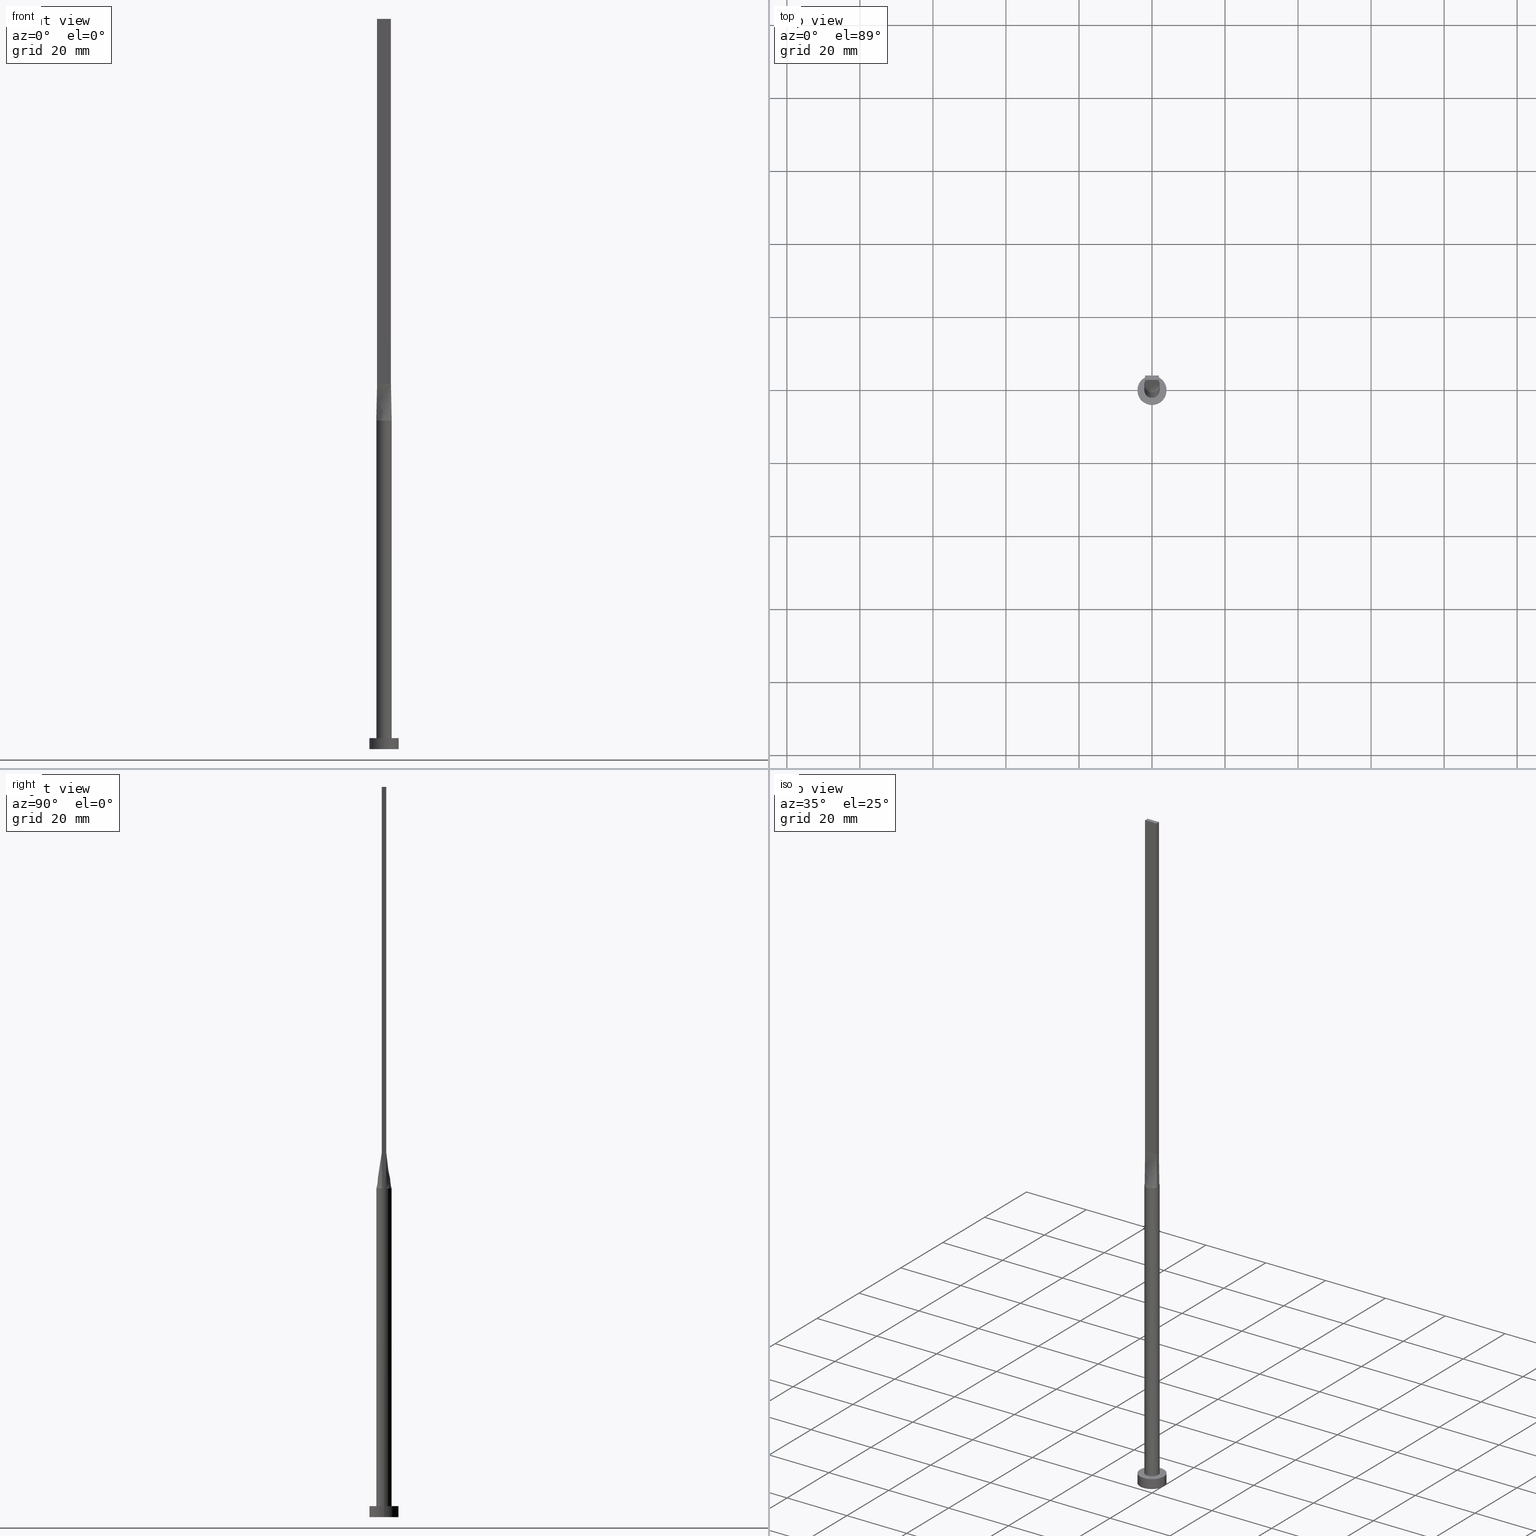
[diagram: canonical four-view strip — front | top / right | iso, engineering-drawing reading convention]
A machine part, canonical four-view strip (front | top / right | iso — engineering-drawing reading convention). The complete STEP part file that produces these views, byte-faithful:
ISO-10303-21;
HEADER;
FILE_DESCRIPTION (( 'STEP AP203' ),
    '1' );
FILE_NAME ('c503.STEP',
    '2023-02-13T13:19:07',
    ( '' ),
    ( '' ),
    'SwSTEP 2.0',
    'SolidWorks 2019',
    '' );
FILE_SCHEMA (( 'CONFIG_CONTROL_DESIGN' ));
ENDSEC;

DATA;
#1 = EDGE_CURVE ( 'NONE', #502, #539, #475, .T. ) ;
#2 = ORIENTED_EDGE ( 'NONE', *, *, #10, .T. ) ;
#3 = CARTESIAN_POINT ( 'NONE',  ( -1.899999999999999467, 0.1999999999999995115, 99.99999999999997158 ) ) ;
#4 = CARTESIAN_POINT ( 'NONE',  ( -0.5124799074986362557, 2.051574327850739454, 90.00000000000002842 ) ) ;
#5 = ORIENTED_EDGE ( 'NONE', *, *, #442, .T. ) ;
#6 = COORDINATED_UNIVERSAL_TIME_OFFSET ( 1, 0, .AHEAD. ) ;
#7 = DIRECTION ( 'NONE',  ( 1.000000000000000000, 0.000000000000000000, 0.000000000000000000 ) ) ;
#8 = EDGE_CURVE ( 'NONE', #372, #539, #489, .T. ) ;
#9 = ORIENTED_EDGE ( 'NONE', *, *, #199, .F. ) ;
#10 = EDGE_CURVE ( 'NONE', #37, #357, #68, .T. ) ;
#11 = EDGE_CURVE ( 'NONE', #233, #367, #536, .T. ) ;
#12 = CARTESIAN_POINT ( 'NONE',  ( -1.899999999999999689, 0.6000000000000001998, 99.99999999999998579 ) ) ;
#13 = DIRECTION ( 'NONE',  ( -0.000000000000000000, -0.000000000000000000, -1.000000000000000000 ) ) ;
#14 = CARTESIAN_POINT ( 'NONE',  ( 0.000000000000000000, 0.000000000000000000, 3.000000000000000000 ) ) ;
#15 = ORIENTED_EDGE ( 'NONE', *, *, #545, .F. ) ;
#16 = DIRECTION ( 'NONE',  ( -0.01025176717979709405, -0.003237400162041182208, 0.9999422085850171449 ) ) ;
#17 = CARTESIAN_POINT ( 'NONE',  ( -2.002622288503867587, 0.6324075186587619912, 90.00000000000000000 ) ) ;
#18 = ADVANCED_FACE ( 'NONE', ( #215 ), #213, .T. ) ;
#19 = CARTESIAN_POINT ( 'NONE',  ( -1.108333333333332504, -0.5999999999999996447, 99.99999999999994316 ) ) ;
#20 = AXIS2_PLACEMENT_3D ( 'NONE', #283, #324, #335 ) ;
#21 = CARTESIAN_POINT ( 'NONE',  ( -1.951261798390848901, -0.6161879363339519688, 95.00000000000000000 ) ) ;
#22 = ORIENTED_EDGE ( 'NONE', *, *, #224, .F. ) ;
#23 = VECTOR ( 'NONE', #16, 1000.000000000000114 ) ;
#24 = CARTESIAN_POINT ( 'NONE',  ( -1.583333333333333259, 0.6000000000000000888, 99.99999999999998579 ) ) ;
#25 = DIRECTION ( 'NONE',  ( -1.807003620809174139E-16, 1.000000000000000000, -0.000000000000000000 ) ) ;
#26 = CARTESIAN_POINT ( 'NONE',  ( -1.899999999999999689, 0.6000000000000001998, 200.0000000000000000 ) ) ;
#27 = CARTESIAN_POINT ( 'NONE',  ( -0.9765948449220485106, -1.875594675604967509, 90.00000000000002842 ) ) ;
#28 = PERSON_AND_ORGANIZATION_ROLE ( 'creator' ) ;
#29 = EDGE_LOOP ( 'NONE', ( #173, #407, #237, #84 ) ) ;
#30 = PERSON_AND_ORGANIZATION ( #328, #62 ) ;
#31 = FACE_OUTER_BOUND ( 'NONE', #176, .T. ) ;
#32 = CARTESIAN_POINT ( 'NONE',  ( 0.5124799074986362557, 2.051574327850739454, 90.00000000000004263 ) ) ;
#33 = CARTESIAN_POINT ( 'NONE',  ( -2.002601997802567535, -0.6324010168594718095, 90.00000000000000000 ) ) ;
#34 = FACE_OUTER_BOUND ( 'NONE', #191, .T. ) ;
#35 = AXIS2_PLACEMENT_3D ( 'NONE', #14, #193, #154 ) ;
#36 = APPROVAL_DATE_TIME ( #521, #418 ) ;
#37 = VERTEX_POINT ( 'NONE', #33 ) ;
#38 = CARTESIAN_POINT ( 'NONE',  ( -1.583333333333332593, -0.5999999999999995337, 99.99999999999995737 ) ) ;
#39 = ORIENTED_EDGE ( 'NONE', *, *, #90, .T. ) ;
#40 = ADVANCED_FACE ( 'NONE', ( #114 ), #161, .T. ) ;
#41 = VERTEX_POINT ( 'NONE', #297 ) ;
#42 = CARTESIAN_POINT ( 'NONE',  ( -1.899999999999999689, 0.6000000000000001998, 99.99999999999998579 ) ) ;
#43 = DIRECTION ( 'NONE',  ( 0.000000000000000000, 0.000000000000000000, 1.000000000000000000 ) ) ;
#44 = CARTESIAN_POINT ( 'NONE',  ( -2.065999667310664645, -0.4313683159928413113, 90.00000000000000000 ) ) ;
#45 = AXIS2_PLACEMENT_3D ( 'NONE', #351, #361, #124 ) ;
#46 = CARTESIAN_POINT ( 'NONE',  ( 1.899999999999999023, -0.5999999999999997558, 99.99999999999998579 ) ) ;
#47 = ORIENTED_EDGE ( 'NONE', *, *, #141, .F. ) ;
#48 = CARTESIAN_POINT ( 'NONE',  ( -1.951261798390848901, 0.6161879363339521909, 95.00000000000000000 ) ) ;
#49 = CARTESIAN_POINT ( 'NONE',  ( -1.899999999999999689, 0.6000000000000001998, 200.0000000000000000 ) ) ;
#50 = VECTOR ( 'NONE', #262, 1000.000000000000000 ) ;
#51 = CARTESIAN_POINT ( 'NONE',  ( -1.667357759214464386, -1.291791096182926424, 89.99999999999997158 ) ) ;
#52 = CARTESIAN_POINT ( 'NONE',  ( -2.100000000000000089, -1.284268198382905442E-16, 90.00000000000000000 ) ) ;
#53 = AXIS2_PLACEMENT_3D ( 'NONE', #555, #151, #526 ) ;
#54 = FACE_OUTER_BOUND ( 'NONE', #220, .T. ) ;
#55 = COORDINATED_UNIVERSAL_TIME_OFFSET ( 1, 0, .AHEAD. ) ;
#56 = ORIENTED_EDGE ( 'NONE', *, *, #525, .F. ) ;
#57 = FACE_OUTER_BOUND ( 'NONE', #465, .T. ) ;
#58 = CARTESIAN_POINT ( 'NONE',  ( 2.100000000000000089, 0.2158003972066308285, 89.99999999999997158 ) ) ;
#59 = ORIENTED_EDGE ( 'NONE', *, *, #494, .T. ) ;
#60 = LINE ( 'NONE', #235, #276 ) ;
#61 = CARTESIAN_POINT ( 'NONE',  ( 0.7916666666666670737, 0.6000000000000000888, 99.99999999999997158 ) ) ;
#62 = ORGANIZATION ( 'NEUR�EN�', 'NEUR�EN�', '' ) ;
#63 = EDGE_CURVE ( 'NONE', #367, #495, #397, .T. ) ;
#64 = FACE_OUTER_BOUND ( 'NONE', #29, .T. ) ;
#65 = VERTEX_POINT ( 'NONE', #478 ) ;
#66 = CARTESIAN_POINT ( 'NONE',  ( 0.9765948449220478444, -1.875594675604967954, 90.00000000000005684 ) ) ;
#67 = EDGE_LOOP ( 'NONE', ( #47, #523 ) ) ;
#68 = CIRCLE ( 'NONE', #412, 2.100000000000000089 ) ;
#69 = CARTESIAN_POINT ( 'NONE',  ( -1.667357759214464830, 1.291791096182927534, 90.00000000000001421 ) ) ;
#70 = CARTESIAN_POINT ( 'NONE',  ( -2.100000000000000089, 0.000000000000000000, 3.000000000000000000 ) ) ;
#71 = EDGE_CURVE ( 'NONE', #194, #502, #305, .T. ) ;
#72 = VECTOR ( 'NONE', #392, 1000.000000000000000 ) ;
#73 = DIRECTION ( 'NONE',  ( 1.000000000000000000, 0.000000000000000000, 0.000000000000000000 ) ) ;
#74 = ORIENTED_EDGE ( 'NONE', *, *, #579, .T. ) ;
#75 = B_SPLINE_SURFACE_WITH_KNOTS ( 'NONE', 3, 1, ( 
 ( #381, #507 ),
 ( #416, #278 ),
 ( #267, #282 ),
 ( #58, #398 ),
 ( #81, #256 ),
 ( #179, #359 ) ),
 .UNSPECIFIED., .F., .F., .F.,
 ( 4, 2, 4 ),
 ( 2, 2 ),
 ( 0.000000000000000000, 0.5000000000000000000, 1.000000000000000000 ),
 ( 0.000000000000000000, 1.000000000000000000 ),
 .UNSPECIFIED. ) ;
#76 = CALENDAR_DATE ( 2023, 13, 2 ) ;
#77 = PLANE ( 'NONE',  #143 ) ;
#78 = CARTESIAN_POINT ( 'NONE',  ( 1.899999999999999689, 0.6000000000000001998, 200.0000000000000000 ) ) ;
#79 = DATE_TIME_ROLE ( 'classification_date' ) ;
#80 = VERTEX_POINT ( 'NONE', #46 ) ;
#81 = CARTESIAN_POINT ( 'NONE',  ( 2.065999667310664645, 0.4313683159928415889, 90.00000000000000000 ) ) ;
#82 = PLANE ( 'NONE',  #384 ) ;
#83 = CARTESIAN_POINT ( 'NONE',  ( 1.529462611013499229, -1.456669187245239971, 90.00000000000001421 ) ) ;
#84 = ORIENTED_EDGE ( 'NONE', *, *, #452, .F. ) ;
#85 = CARTESIAN_POINT ( 'NONE',  ( -1.899999999999999911, -0.5999999999999995337, 200.0000000000000000 ) ) ;
#86 = DIRECTION ( 'NONE',  ( -0.000000000000000000, -0.000000000000000000, -1.000000000000000000 ) ) ;
#87 = DIRECTION ( 'NONE',  ( 0.000000000000000000, 0.000000000000000000, 1.000000000000000000 ) ) ;
#88 = CARTESIAN_POINT ( 'NONE',  ( 0.1583333333333335202, 0.6000000000000000888, 99.99999999999997158 ) ) ;
#89 = ORIENTED_EDGE ( 'NONE', *, *, #11, .F. ) ;
#90 = EDGE_CURVE ( 'NONE', #464, #80, #528, .T. ) ;
#91 = ORIENTED_EDGE ( 'NONE', *, *, #127, .F. ) ;
#92 = ADVANCED_FACE ( 'NONE', ( #370 ), #82, .T. ) ;
#93 = CARTESIAN_POINT ( 'NONE',  ( -1.667357759214464830, 1.291791096182927534, 90.00000000000001421 ) ) ;
#94 = CARTESIAN_POINT ( 'NONE',  ( 0.000000000000000000, 0.000000000000000000, 3.000000000000000000 ) ) ;
#95 = FACE_OUTER_BOUND ( 'NONE', #185, .T. ) ;
#96 = ADVANCED_BREP_SHAPE_REPRESENTATION ( 'c503', ( #457, #45 ), #477 ) ;
#97 = CARTESIAN_POINT ( 'NONE',  ( 0.000000000000000000, 0.000000000000000000, 3.000000000000000000 ) ) ;
#98 = CARTESIAN_POINT ( 'NONE',  ( 1.952271707612932339, -0.7915068550356634258, 90.00000000000001421 ) ) ;
#99 = DIRECTION ( 'NONE',  ( -1.000000000000000000, 0.000000000000000000, 0.000000000000000000 ) ) ;
#100 = AXIS2_PLACEMENT_3D ( 'NONE', #569, #430, #391 ) ;
#101 = CARTESIAN_POINT ( 'NONE',  ( 0.000000000000000000, 0.000000000000000000, 3.000000000000000000 ) ) ;
#102 = VECTOR ( 'NONE', #255, 1000.000000000000000 ) ;
#103 = CARTESIAN_POINT ( 'NONE',  ( 2.002598039528881380, 0.6323997261616642884, 90.00000000000000000 ) ) ;
#104 = APPLICATION_CONTEXT ( 'configuration controlled 3d designs of mechanical parts and assemblies' ) ;
#105 = CC_DESIGN_PERSON_AND_ORGANIZATION_ASSIGNMENT ( #225, #535, ( #250 ) ) ;
#106 = FACE_OUTER_BOUND ( 'NONE', #67, .T. ) ;
#107 = CARTESIAN_POINT ( 'NONE',  ( -4.000000000000000000, 0.000000000000000000, 3.000000000000000000 ) ) ;
#108 = AXIS2_PLACEMENT_3D ( 'NONE', #492, #87, #543 ) ;
#109 = CARTESIAN_POINT ( 'NONE',  ( -1.899999999999999911, -0.5999999999999995337, 200.0000000000000000 ) ) ;
#110 = PRODUCT_DEFINITION_SHAPE ( 'NONE', 'NONE',  #250 ) ;
#111 = CARTESIAN_POINT ( 'NONE',  ( 0.2565105576742072735, -2.100000000000000533, 90.00000000000002842 ) ) ;
#112 = CARTESIAN_POINT ( 'NONE',  ( 0.000000000000000000, 0.000000000000000000, 3.000000000000000000 ) ) ;
#113 = AXIS2_PLACEMENT_3D ( 'NONE', #293, #347, #117 ) ;
#114 = FACE_OUTER_BOUND ( 'NONE', #126, .T. ) ;
#115 = DIRECTION ( 'NONE',  ( -1.807003620809174632E-16, -1.000000000000000000, 0.000000000000000000 ) ) ;
#116 = VERTEX_POINT ( 'NONE', #443 ) ;
#117 = DIRECTION ( 'NONE',  ( -1.000000000000000000, 0.000000000000000000, 0.000000000000000000 ) ) ;
#118 = ORIENTED_EDGE ( 'NONE', *, *, #199, .T. ) ;
#119 = DIRECTION ( 'NONE',  ( 1.000000000000000000, -1.776356839400250465E-15, 0.000000000000000000 ) ) ;
#120 = APPROVAL_ROLE ( '' ) ;
#121 = VECTOR ( 'NONE', #453, 1000.000000000000000 ) ;
#122 = ORIENTED_EDGE ( 'NONE', *, *, #494, .F. ) ;
#123 = CARTESIAN_POINT ( 'NONE',  ( 0.000000000000000000, 0.000000000000000000, 90.00000000000000000 ) ) ;
#124 = DIRECTION ( 'NONE',  ( 1.000000000000000000, 0.000000000000000000, 0.000000000000000000 ) ) ;
#125 = VECTOR ( 'NONE', #115, 1000.000000000000000 ) ;
#126 = EDGE_LOOP ( 'NONE', ( #265, #157, #189, #451, #580, #556 ) ) ;
#127 = EDGE_CURVE ( 'NONE', #306, #435, #449, .T. ) ;
#128 = CALENDAR_DATE ( 2023, 13, 2 ) ;
#129 = DIRECTION ( 'NONE',  ( 1.000000000000000000, -5.706327223607920020E-17, 0.000000000000000000 ) ) ;
#130 = CARTESIAN_POINT ( 'NONE',  ( -2.002523596781697890, -0.6323758726679042930, 90.00000000000000000 ) ) ;
#131 = CARTESIAN_POINT ( 'NONE',  ( -0.1583333333333331316, 0.6000000000000000888, 99.99999999999997158 ) ) ;
#132 = CARTESIAN_POINT ( 'NONE',  ( 1.529462611013499451, 1.456669187245239527, 90.00000000000002842 ) ) ;
#133 = CARTESIAN_POINT ( 'NONE',  ( -0.6333333333333327486, 0.6000000000000000888, 99.99999999999997158 ) ) ;
#134 = VECTOR ( 'NONE', #202, 1000.000000000000114 ) ;
#135 = CC_DESIGN_SECURITY_CLASSIFICATION ( #448, ( #264 ) ) ;
#136 = CARTESIAN_POINT ( 'NONE',  ( -1.952271707612931895, -0.7915068550356626487, 90.00000000000001421 ) ) ;
#137 = CARTESIAN_POINT ( 'NONE',  ( -1.899999999999999911, -0.5999999999999995337, 99.99999999999998579 ) ) ;
#138 = ORIENTED_EDGE ( 'NONE', *, *, #140, .F. ) ;
#139 = APPROVAL_DATE_TIME ( #368, #511 ) ;
#140 = EDGE_CURVE ( 'NONE', #367, #80, #259, .T. ) ;
#141 = EDGE_CURVE ( 'NONE', #41, #435, #198, .T. ) ;
#142 = PERSON_AND_ORGANIZATION ( #328, #62 ) ;
#143 = AXIS2_PLACEMENT_3D ( 'NONE', #573, #223, #178 ) ;
#144 = CARTESIAN_POINT ( 'NONE',  ( 0.000000000000000000, 0.000000000000000000, 90.00000000000000000 ) ) ;
#145 = DIRECTION ( 'NONE',  ( 0.000000000000000000, 0.000000000000000000, 1.000000000000000000 ) ) ;
#146 = CC_DESIGN_PERSON_AND_ORGANIZATION_ASSIGNMENT ( #300, #480, ( #448 ) ) ;
#147 = CARTESIAN_POINT ( 'NONE',  ( 1.741666666666665808, -0.5999999999999997558, 99.99999999999997158 ) ) ;
#148 = CARTESIAN_POINT ( 'NONE',  ( -1.878511276496549032, 0.9591670956957809580, 90.00000000000004263 ) ) ;
#149 = CARTESIAN_POINT ( 'NONE',  ( 1.899999999999999689, 0.6000000000000001998, 200.0000000000000000 ) ) ;
#150 = DIRECTION ( 'NONE',  ( 0.000000000000000000, 0.000000000000000000, 1.000000000000000000 ) ) ;
#151 = DIRECTION ( 'NONE',  ( 0.000000000000000000, 0.000000000000000000, 1.000000000000000000 ) ) ;
#152 = ORIENTED_EDGE ( 'NONE', *, *, #458, .F. ) ;
#153 = APPROVAL_PERSON_ORGANIZATION ( #280, #511, #454 ) ;
#154 = DIRECTION ( 'NONE',  ( 1.000000000000000000, 0.000000000000000000, 0.000000000000000000 ) ) ;
#155 = CARTESIAN_POINT ( 'NONE',  ( -2.002523596781697890, 0.6323758726679044040, 90.00000000000000000 ) ) ;
#156 = APPLICATION_PROTOCOL_DEFINITION ( 'international standard', 'config_control_design', 1994, #197 ) ;
#157 = ORIENTED_EDGE ( 'NONE', *, *, #71, .T. ) ;
#158 = SECURITY_CLASSIFICATION_LEVEL ( 'unclassified' ) ;
#159 = CALENDAR_DATE ( 2023, 13, 2 ) ;
#160 = CARTESIAN_POINT ( 'NONE',  ( -1.529462611013499451, 1.456669187245239527, 90.00000000000002842 ) ) ;
#161 = CYLINDRICAL_SURFACE ( 'NONE', #113, 2.100000000000000089 ) ;
#162 =( NAMED_UNIT ( * ) PLANE_ANGLE_UNIT ( ) SI_UNIT ( $, .RADIAN. ) );
#163 = ORIENTED_EDGE ( 'NONE', *, *, #71, .F. ) ;
#164 = CARTESIAN_POINT ( 'NONE',  ( 1.266666666666667052, 0.6000000000000000888, 99.99999999999998579 ) ) ;
#165 = DIRECTION ( 'NONE',  ( 1.000000000000000000, 0.000000000000000000, 0.000000000000000000 ) ) ;
#166 = CARTESIAN_POINT ( 'NONE',  ( -1.899999999999999689, -0.4000000000000000777, 99.99999999999997158 ) ) ;
#167 = VERTEX_POINT ( 'NONE', #49 ) ;
#168 = VERTEX_POINT ( 'NONE', #42 ) ;
#169 = LINE ( 'NONE', #85, #520 ) ;
#170 = CARTESIAN_POINT ( 'NONE',  ( 1.108333333333333171, -0.5999999999999996447, 99.99999999999997158 ) ) ;
#171 = VECTOR ( 'NONE', #25, 1000.000000000000000 ) ;
#172 = LINE ( 'NONE', #356, #522 ) ;
#173 = ORIENTED_EDGE ( 'NONE', *, *, #442, .F. ) ;
#174 = DIRECTION ( 'NONE',  ( 0.000000000000000000, 0.000000000000000000, 1.000000000000000000 ) ) ;
#175 = CARTESIAN_POINT ( 'NONE',  ( -0.2565105576742073845, 2.100000000000000533, 90.00000000000001421 ) ) ;
#176 = EDGE_LOOP ( 'NONE', ( #118, #496, #56, #380 ) ) ;
#177 = ORIENTED_EDGE ( 'NONE', *, *, #217, .T. ) ;
#178 = DIRECTION ( 'NONE',  ( -1.000000000000000000, 5.706327223607920020E-17, 0.000000000000000000 ) ) ;
#179 = CARTESIAN_POINT ( 'NONE',  ( 2.002523596781697890, 0.6323758726679047371, 90.00000000000000000 ) ) ;
#180 = ADVANCED_FACE ( 'NONE', ( #95 ), #332, .T. ) ;
#181 = DIRECTION ( 'NONE',  ( -0.000000000000000000, -0.000000000000000000, -1.000000000000000000 ) ) ;
#182 = CARTESIAN_POINT ( 'NONE',  ( 1.899999999999999689, 0.6000000000000001998, 99.99999999999998579 ) ) ;
#183 = CARTESIAN_POINT ( 'NONE',  ( -2.100000000000000089, -0.2158003972066306064, 89.99999999999997158 ) ) ;
#184 = CIRCLE ( 'NONE', #326, 2.100000000000000089 ) ;
#185 = EDGE_LOOP ( 'NONE', ( #499, #342, #208, #122, #570 ) ) ;
#186 = B_SPLINE_CURVE_WITH_KNOTS ( 'NONE', 3,
 ( #103, #378, #331, #552, #467, #240, #422, #32, #290, #248, #203, #246, #211, #160, #93, #148, #561, #471 ),
 .UNSPECIFIED., .F., .F.,
 ( 4, 2, 2, 2, 2, 2, 2, 2, 4 ),
 ( 0.000000000000000000, 0.1249999999999999167, 0.2499999999999998890, 0.3749999999999998335, 0.4999999999999998890, 0.6249999999999998890, 0.7499999999999998890, 0.8750000000000000000, 1.000000000000000000 ),
 .UNSPECIFIED. ) ;
#187 = AXIS2_PLACEMENT_3D ( 'NONE', #26, #349, #249 ) ;
#188 = CARTESIAN_POINT ( 'NONE',  ( -0.7916666666666660745, 0.6000000000000000888, 99.99999999999998579 ) ) ;
#189 = ORIENTED_EDGE ( 'NONE', *, *, #1, .T. ) ;
#190 = VECTOR ( 'NONE', #434, 1000.000000000000000 ) ;
#191 = EDGE_LOOP ( 'NONE', ( #432, #5 ) ) ;
#192 = CARTESIAN_POINT ( 'NONE',  ( 1.899999999999999689, 0.6000000000000001998, 99.99999999999998579 ) ) ;
#193 = DIRECTION ( 'NONE',  ( 0.000000000000000000, 0.000000000000000000, 1.000000000000000000 ) ) ;
#194 = VERTEX_POINT ( 'NONE', #532 ) ;
#195 = CARTESIAN_POINT ( 'NONE',  ( -0.2565105576742081062, -2.100000000000000089, 89.99999999999998579 ) ) ;
#196 = ORIENTED_EDGE ( 'NONE', *, *, #525, .T. ) ;
#197 = APPLICATION_CONTEXT ( 'configuration controlled 3d designs of mechanical parts and assemblies' ) ;
#198 = CIRCLE ( 'NONE', #108, 4.000000000000000000 ) ;
#199 = EDGE_CURVE ( 'NONE', #299, #168, #360, .T. ) ;
#200 = PRODUCT ( 'c503', 'c503', '', ( #444 ) ) ;
#201 = LINE ( 'NONE', #560, #72 ) ;
#202 = DIRECTION ( 'NONE',  ( -0.01025176717979707323, -0.003237400162041204326, -0.9999422085850171449 ) ) ;
#203 = CARTESIAN_POINT ( 'NONE',  ( -0.5124799074986362557, 2.051574327850739454, 90.00000000000002842 ) ) ;
#204 = CARTESIAN_POINT ( 'NONE',  ( -1.878511276496549032, 0.9591670956957809580, 90.00000000000004263 ) ) ;
#205 = COORDINATED_UNIVERSAL_TIME_OFFSET ( 1, 0, .AHEAD. ) ;
#206 = ORIENTED_EDGE ( 'NONE', *, *, #8, .T. ) ;
#207 = ADVANCED_FACE ( 'NONE', ( #445 ), #406, .F. ) ;
#208 = ORIENTED_EDGE ( 'NONE', *, *, #314, .F. ) ;
#209 = CARTESIAN_POINT ( 'NONE',  ( 0.3166666666666670404, 0.6000000000000000888, 99.99999999999997158 ) ) ;
#210 = EDGE_LOOP ( 'NONE', ( #39, #138, #89, #216 ) ) ;
#211 = CARTESIAN_POINT ( 'NONE',  ( -1.184262492297963876, 1.748903470433446294, 90.00000000000002842 ) ) ;
#212 = CARTESIAN_POINT ( 'NONE',  ( -1.899999999999999689, 0.6000000000000001998, 200.0000000000000000 ) ) ;
#213 = B_SPLINE_SURFACE_WITH_KNOTS ( 'NONE', 3, 1, ( 
 ( #226, #182 ),
 ( #310, #302 ),
 ( #493, #373 ),
 ( #484, #164 ),
 ( #132, #409 ),
 ( #315, #61 ),
 ( #273, #550 ),
 ( #286, #209 ),
 ( #355, #88 ),
 ( #175, #131 ),
 ( #4, #450 ),
 ( #410, #133 ),
 ( #501, #188 ),
 ( #393, #473 ),
 ( #69, #254 ),
 ( #204, #24 ),
 ( #557, #518 ),
 ( #155, #343 ) ),
 .UNSPECIFIED., .F., .F., .F.,
 ( 4, 2, 2, 2, 2, 2, 2, 2, 4 ),
 ( 2, 2 ),
 ( 0.000000000000000000, 0.1249999999999999167, 0.2499999999999998890, 0.3749999999999998335, 0.4999999999999998890, 0.6249999999999998890, 0.7499999999999998890, 0.8750000000000000000, 1.000000000000000000 ),
 ( 0.000000000000000000, 1.000000000000000000 ),
 .UNSPECIFIED. ) ;
#214 = LINE ( 'NONE', #48, #468 ) ;
#215 = FACE_OUTER_BOUND ( 'NONE', #529, .T. ) ;
#216 = ORIENTED_EDGE ( 'NONE', *, *, #363, .T. ) ;
#217 = EDGE_CURVE ( 'NONE', #65, #455, #186, .T. ) ;
#218 = FACE_OUTER_BOUND ( 'NONE', #441, .T. ) ;
#219 = CARTESIAN_POINT ( 'NONE',  ( -1.899999999999999689, 0.6000000000000001998, 99.99999999999998579 ) ) ;
#220 = EDGE_LOOP ( 'NONE', ( #163, #152, #400, #530, #206, #517 ) ) ;
#221 = DIRECTION ( 'NONE',  ( 1.000000000000000000, 0.000000000000000000, -0.000000000000000000 ) ) ;
#222 = APPROVAL_PERSON_ORGANIZATION ( #30, #344, #120 ) ;
#223 = DIRECTION ( 'NONE',  ( 5.706327223607920020E-17, 1.000000000000000000, -0.000000000000000000 ) ) ;
#224 = EDGE_CURVE ( 'NONE', #539, #502, #358, .T. ) ;
#225 = PERSON_AND_ORGANIZATION ( #328, #62 ) ;
#226 = CARTESIAN_POINT ( 'NONE',  ( 2.002523596781697890, 0.6323758726679044040, 90.00000000000000000 ) ) ;
#227 = CARTESIAN_POINT ( 'NONE',  ( -1.878511276496548144, -0.9591670956957798477, 90.00000000000000000 ) ) ;
#228 = CARTESIAN_POINT ( 'NONE',  ( -1.899999999999999911, -0.5999999999999995337, 99.99999999999998579 ) ) ;
#229 = EDGE_LOOP ( 'NONE', ( #330, #15, #352, #440 ) ) ;
#230 = DIRECTION ( 'NONE',  ( 0.01025176717979709405, -0.003237400162041150116, 0.9999422085850171449 ) ) ;
#231 = CARTESIAN_POINT ( 'NONE',  ( -2.065999667310664645, 0.4313683159928417554, 90.00000000000001421 ) ) ;
#232 = DIRECTION ( 'NONE',  ( -0.000000000000000000, -0.000000000000000000, -1.000000000000000000 ) ) ;
#233 = VERTEX_POINT ( 'NONE', #109 ) ;
#234 = AXIS2_PLACEMENT_3D ( 'NONE', #551, #150, #119 ) ;
#235 = CARTESIAN_POINT ( 'NONE',  ( 1.951261798390848901, -0.6161879363339519688, 95.00000000000000000 ) ) ;
#236 = CARTESIAN_POINT ( 'NONE',  ( 2.002523596781698334, -0.6323758726679041819, 90.00000000000000000 ) ) ;
#237 = ORIENTED_EDGE ( 'NONE', *, *, #559, .T. ) ;
#238 = CARTESIAN_POINT ( 'NONE',  ( -0.3166666666666659302, -0.5999999999999996447, 99.99999999999997158 ) ) ;
#239 = DIRECTION ( 'NONE',  ( 0.000000000000000000, -1.000000000000000000, 0.000000000000000000 ) ) ;
#240 = CARTESIAN_POINT ( 'NONE',  ( 1.184262492297964098, 1.748903470433445628, 90.00000000000000000 ) ) ;
#241 = B_SPLINE_SURFACE_WITH_KNOTS ( 'NONE', 3, 1, ( 
 ( #130, #542 ),
 ( #136, #307 ),
 ( #227, #38 ),
 ( #51, #322 ),
 ( #515, #19 ),
 ( #337, #431 ),
 ( #27, #341 ),
 ( #350, #238 ),
 ( #195, #549 ),
 ( #111, #510 ),
 ( #289, #470 ),
 ( #66, #575 ),
 ( #483, #401 ),
 ( #83, #170 ),
 ( #479, #577 ),
 ( #456, #503 ),
 ( #98, #147 ),
 ( #236, #460 ) ),
 .UNSPECIFIED., .F., .F., .F.,
 ( 4, 2, 2, 2, 2, 2, 2, 2, 4 ),
 ( 2, 2 ),
 ( 0.000000000000000000, 0.1250000000000000833, 0.2500000000000001110, 0.3750000000000001110, 0.5000000000000001110, 0.6250000000000001110, 0.7500000000000000000, 0.8750000000000000000, 1.000000000000000000 ),
 ( 0.000000000000000000, 1.000000000000000000 ),
 .UNSPECIFIED. ) ;
#242 = CARTESIAN_POINT ( 'NONE',  ( 4.000000000000000000, 4.898587196589412829E-16, 3.000000000000000000 ) ) ;
#243 = ORIENTED_EDGE ( 'NONE', *, *, #540, .F. ) ;
#244 = DIRECTION ( 'NONE',  ( -0.000000000000000000, -0.000000000000000000, -1.000000000000000000 ) ) ;
#245 = CC_DESIGN_PERSON_AND_ORGANIZATION_ASSIGNMENT ( #491, #252, ( #200 ) ) ;
#246 = CARTESIAN_POINT ( 'NONE',  ( -0.9765948449220482885, 1.875594675604967509, 90.00000000000004263 ) ) ;
#247 = LINE ( 'NONE', #394, #171 ) ;
#248 = CARTESIAN_POINT ( 'NONE',  ( -0.2565105576742073845, 2.100000000000000533, 90.00000000000001421 ) ) ;
#249 = DIRECTION ( 'NONE',  ( 1.807003620809174878E-16, 1.000000000000000000, 0.000000000000000000 ) ) ;
#250 = PRODUCT_DEFINITION ( 'NEZN�M�', '', #264, #544 ) ;
#251 = DATE_AND_TIME ( #76, #438 ) ;
#252 = PERSON_AND_ORGANIZATION_ROLE ( 'design_owner' ) ;
#253 = EDGE_LOOP ( 'NONE', ( #22, #266 ) ) ;
#254 = CARTESIAN_POINT ( 'NONE',  ( -1.266666666666666385, 0.6000000000000000888, 99.99999999999998579 ) ) ;
#255 = DIRECTION ( 'NONE',  ( -1.000000000000000000, 0.000000000000000000, 0.000000000000000000 ) ) ;
#256 = CARTESIAN_POINT ( 'NONE',  ( 1.899999999999999467, 0.4000000000000005218, 99.99999999999997158 ) ) ;
#257 = ORIENTED_EDGE ( 'NONE', *, *, #452, .T. ) ;
#258 = CARTESIAN_POINT ( 'NONE',  ( -2.100000000000000089, 0.000000000000000000, 90.00000000000000000 ) ) ;
#259 = LINE ( 'NONE', #308, #121 ) ;
#260 = CARTESIAN_POINT ( 'NONE',  ( 0.000000000000000000, 0.000000000000000000, 90.00000000000000000 ) ) ;
#261 = DIRECTION ( 'NONE',  ( -1.000000000000000000, -0.000000000000000000, -0.000000000000000000 ) ) ;
#262 = DIRECTION ( 'NONE',  ( -0.000000000000000000, -0.000000000000000000, -1.000000000000000000 ) ) ;
#263 = AXIS2_PLACEMENT_3D ( 'NONE', #123, #43, #447 ) ;
#264 = PRODUCT_DEFINITION_FORMATION_WITH_SPECIFIED_SOURCE ( 'LIBOVOLN�', '', #200, .NOT_KNOWN. ) ;
#265 = ORIENTED_EDGE ( 'NONE', *, *, #547, .F. ) ;
#266 = ORIENTED_EDGE ( 'NONE', *, *, #1, .F. ) ;
#267 = CARTESIAN_POINT ( 'NONE',  ( 2.099999999999999645, -0.2158003972066312171, 90.00000000000000000 ) ) ;
#268 = ADVANCED_FACE ( 'NONE', ( #64 ), #423, .T. ) ;
#269 = CARTESIAN_POINT ( 'NONE',  ( 2.100000000000000089, 2.571758278209441957E-16, 90.00000000000000000 ) ) ;
#270 = ORIENTED_EDGE ( 'NONE', *, *, #472, .F. ) ;
#271 = CARTESIAN_POINT ( 'NONE',  ( -1.899999999999999689, 0.6000000000000001998, 99.99999999999998579 ) ) ;
#272 = VECTOR ( 'NONE', #261, 1000.000000000000000 ) ;
#273 = CARTESIAN_POINT ( 'NONE',  ( 0.9765948449220478444, 1.875594675604967065, 90.00000000000001421 ) ) ;
#274 = CARTESIAN_POINT ( 'NONE',  ( 4.000000000000000000, 4.898587196589412829E-16, 0.000000000000000000 ) ) ;
#275 = AXIS2_PLACEMENT_3D ( 'NONE', #112, #329, #546 ) ;
#276 = VECTOR ( 'NONE', #426, 1000.000000000000114 ) ;
#277 = EDGE_CURVE ( 'NONE', #357, #80, #60, .T. ) ;
#278 = CARTESIAN_POINT ( 'NONE',  ( 1.899999999999999689, -0.3999999999999993561, 99.99999999999997158 ) ) ;
#279 = ORIENTED_EDGE ( 'NONE', *, *, #314, .T. ) ;
#280 = PERSON_AND_ORGANIZATION ( #328, #62 ) ;
#281 = VECTOR ( 'NONE', #538, 1000.000000000000000 ) ;
#282 = CARTESIAN_POINT ( 'NONE',  ( 1.899999999999999689, -0.1999999999999992339, 99.99999999999997158 ) ) ;
#283 = CARTESIAN_POINT ( 'NONE',  ( 1.899999999999999023, -0.5999999999999997558, 200.0000000000000000 ) ) ;
#284 = DIRECTION ( 'NONE',  ( -0.000000000000000000, -0.000000000000000000, -1.000000000000000000 ) ) ;
#285 = VECTOR ( 'NONE', #382, 1000.000000000000000 ) ;
#286 = CARTESIAN_POINT ( 'NONE',  ( 0.5124799074986362557, 2.051574327850739454, 90.00000000000004263 ) ) ;
#287 = AXIS2_PLACEMENT_3D ( 'NONE', #514, #564, #294 ) ;
#288 = DIRECTION ( 'NONE',  ( 1.000000000000000000, 0.000000000000000000, 0.000000000000000000 ) ) ;
#289 = CARTESIAN_POINT ( 'NONE',  ( 0.5124799074986360337, -2.051574327850739454, 90.00000000000002842 ) ) ;
#290 = CARTESIAN_POINT ( 'NONE',  ( 0.2565105576742081062, 2.100000000000000533, 90.00000000000000000 ) ) ;
#291 = DATE_AND_TIME ( #128, #379 ) ;
#292 = CARTESIAN_POINT ( 'NONE',  ( 1.899999999999999689, 0.6000000000000001998, 200.0000000000000000 ) ) ;
#293 = CARTESIAN_POINT ( 'NONE',  ( 0.000000000000000000, 0.000000000000000000, 90.00000000000000000 ) ) ;
#294 = DIRECTION ( 'NONE',  ( 1.000000000000000000, 0.000000000000000000, 0.000000000000000000 ) ) ;
#295 = ORIENTED_EDGE ( 'NONE', *, *, #90, .F. ) ;
#296 = SHAPE_DEFINITION_REPRESENTATION ( #110, #96 ) ;
#297 = CARTESIAN_POINT ( 'NONE',  ( -4.000000000000000000, 0.000000000000000000, 0.000000000000000000 ) ) ;
#298 = PERSON_AND_ORGANIZATION ( #328, #62 ) ;
#299 = VERTEX_POINT ( 'NONE', #192 ) ;
#300 = PERSON_AND_ORGANIZATION ( #328, #62 ) ;
#301 = ORIENTED_EDGE ( 'NONE', *, *, #490, .F. ) ;
#302 = CARTESIAN_POINT ( 'NONE',  ( 1.741666666666666474, 0.6000000000000001998, 99.99999999999998579 ) ) ;
#303 = VECTOR ( 'NONE', #129, 1000.000000000000000 ) ;
#304 = APPROVAL_DATE_TIME ( #568, #344 ) ;
#305 = LINE ( 'NONE', #269, #50 ) ;
#306 = VERTEX_POINT ( 'NONE', #242 ) ;
#307 = CARTESIAN_POINT ( 'NONE',  ( -1.741666666666666252, -0.5999999999999995337, 99.99999999999997158 ) ) ;
#308 = CARTESIAN_POINT ( 'NONE',  ( 1.899999999999999023, -0.5999999999999997558, 200.0000000000000000 ) ) ;
#309 = ADVANCED_FACE ( 'NONE', ( #54 ), #319, .T. ) ;
#310 = CARTESIAN_POINT ( 'NONE',  ( 1.952271707612931895, 0.7915068550356627597, 89.99999999999998579 ) ) ;
#311 = CARTESIAN_POINT ( 'NONE',  ( 0.000000000000000000, 0.000000000000000000, 200.0000000000000000 ) ) ;
#312 = CLOSED_SHELL ( 'NONE', ( #40, #268, #429, #572, #513, #309, #371, #408, #180, #18, #461, #534, #333, #207, #92 ) ) ;
#313 = ORIENTED_EDGE ( 'NONE', *, *, #579, .F. ) ;
#314 = EDGE_CURVE ( 'NONE', #464, #37, #345, .T. ) ;
#315 = CARTESIAN_POINT ( 'NONE',  ( 1.184262492297964098, 1.748903470433445628, 90.00000000000000000 ) ) ;
#316 = AXIS2_PLACEMENT_3D ( 'NONE', #292, #239, #389 ) ;
#317 = CC_DESIGN_APPROVAL ( #511, ( #250 ) ) ;
#318 =( LENGTH_UNIT ( ) NAMED_UNIT ( * ) SI_UNIT ( .MILLI., .METRE. ) );
#319 = CYLINDRICAL_SURFACE ( 'NONE', #419, 2.100000000000000089 ) ;
#320 = PRODUCT_RELATED_PRODUCT_CATEGORY ( 'detail', '', ( #200 ) ) ;
#321 = VECTOR ( 'NONE', #86, 1000.000000000000000 ) ;
#322 = CARTESIAN_POINT ( 'NONE',  ( -1.266666666666665941, -0.5999999999999996447, 99.99999999999995737 ) ) ;
#323 = COORDINATED_UNIVERSAL_TIME_OFFSET ( 1, 0, .AHEAD. ) ;
#324 = DIRECTION ( 'NONE',  ( -1.000000000000000000, 5.421010862427522170E-16, 0.000000000000000000 ) ) ;
#325 = AXIS2_PLACEMENT_3D ( 'NONE', #339, #284, #553 ) ;
#326 = AXIS2_PLACEMENT_3D ( 'NONE', #548, #508, #288 ) ;
#327 = LINE ( 'NONE', #107, #375 ) ;
#328 = PERSON ( 'NEUR�EN�', 'NEUR�EN�', 'NEUR�EN�', ('NEUR�EN�'), ('NEUR�EN�'), ('NEUR�EN�') ) ;
#329 = DIRECTION ( 'NONE',  ( 0.000000000000000000, 0.000000000000000000, 1.000000000000000000 ) ) ;
#330 = ORIENTED_EDGE ( 'NONE', *, *, #540, .T. ) ;
#331 = CARTESIAN_POINT ( 'NONE',  ( 1.878511276496548366, 0.9591670956957804028, 90.00000000000000000 ) ) ;
#332 = B_SPLINE_SURFACE_WITH_KNOTS ( 'NONE', 3, 1, ( 
 ( #366, #219 ),
 ( #231, #413 ),
 ( #403, #3 ),
 ( #183, #374 ),
 ( #44, #166 ),
 ( #574, #137 ) ),
 .UNSPECIFIED., .F., .F., .F.,
 ( 4, 2, 4 ),
 ( 2, 2 ),
 ( 0.000000000000000000, 0.5000000000000000000, 1.000000000000000000 ),
 ( 0.000000000000000000, 1.000000000000000000 ),
 .UNSPECIFIED. ) ;
#333 = ADVANCED_FACE ( 'NONE', ( #481 ), #77, .F. ) ;
#334 = EDGE_CURVE ( 'NONE', #455, #168, #214, .T. ) ;
#335 = DIRECTION ( 'NONE',  ( -5.421010862427522170E-16, -1.000000000000000000, 0.000000000000000000 ) ) ;
#336 = APPLICATION_PROTOCOL_DEFINITION ( 'international standard', 'config_control_design', 1994, #104 ) ;
#337 = CARTESIAN_POINT ( 'NONE',  ( -1.184262492297964098, -1.748903470433446294, 89.99999999999998579 ) ) ;
#338 = LOCAL_TIME ( 14, 19, 7.000000000000000000, #323 ) ;
#339 = CARTESIAN_POINT ( 'NONE',  ( 0.000000000000000000, 0.000000000000000000, 3.000000000000000000 ) ) ;
#340 = FACE_OUTER_BOUND ( 'NONE', #425, .T. ) ;
#341 = CARTESIAN_POINT ( 'NONE',  ( -0.6333333333333325266, -0.5999999999999996447, 99.99999999999997158 ) ) ;
#342 = ORIENTED_EDGE ( 'NONE', *, *, #411, .T. ) ;
#343 = CARTESIAN_POINT ( 'NONE',  ( -1.899999999999999689, 0.6000000000000001998, 99.99999999999998579 ) ) ;
#344 = APPROVAL ( #487, 'NEUR�EN�' ) ;
#345 = LINE ( 'NONE', #21, #134 ) ;
#346 = ORIENTED_EDGE ( 'NONE', *, *, #277, .T. ) ;
#347 = DIRECTION ( 'NONE',  ( -0.000000000000000000, -0.000000000000000000, -1.000000000000000000 ) ) ;
#348 = APPROVAL_ROLE ( '' ) ;
#349 = DIRECTION ( 'NONE',  ( 1.000000000000000000, -1.807003620809174878E-16, 0.000000000000000000 ) ) ;
#350 = CARTESIAN_POINT ( 'NONE',  ( -0.5124799074986365888, -2.051574327850738566, 90.00000000000002842 ) ) ;
#351 = CARTESIAN_POINT ( 'NONE',  ( 0.000000000000000000, 0.000000000000000000, 0.000000000000000000 ) ) ;
#352 = ORIENTED_EDGE ( 'NONE', *, *, #63, .F. ) ;
#353 = CC_DESIGN_APPROVAL ( #418, ( #264 ) ) ;
#354 = PERSON_AND_ORGANIZATION_ROLE ( 'design_supplier' ) ;
#355 = CARTESIAN_POINT ( 'NONE',  ( 0.2565105576742081062, 2.100000000000000533, 90.00000000000000000 ) ) ;
#356 = CARTESIAN_POINT ( 'NONE',  ( -1.899999999999999689, 0.6000000000000001998, 200.0000000000000000 ) ) ;
#357 = VERTEX_POINT ( 'NONE', #571 ) ;
#358 = CIRCLE ( 'NONE', #35, 2.100000000000000089 ) ;
#359 = CARTESIAN_POINT ( 'NONE',  ( 1.899999999999999689, 0.6000000000000001998, 99.99999999999998579 ) ) ;
#360 = LINE ( 'NONE', #271, #272 ) ;
#361 = DIRECTION ( 'NONE',  ( 0.000000000000000000, 0.000000000000000000, 1.000000000000000000 ) ) ;
#362 = ORIENTED_EDGE ( 'NONE', *, *, #547, .T. ) ;
#363 = EDGE_CURVE ( 'NONE', #233, #464, #169, .T. ) ;
#364 = CALENDAR_DATE ( 2023, 13, 2 ) ;
#365 = COORDINATED_UNIVERSAL_TIME_OFFSET ( 1, 0, .AHEAD. ) ;
#366 = CARTESIAN_POINT ( 'NONE',  ( -2.002523596781697890, 0.6323758726679048481, 90.00000000000000000 ) ) ;
#367 = VERTEX_POINT ( 'NONE', #488 ) ;
#368 = DATE_AND_TIME ( #364, #405 ) ;
#369 = DIRECTION ( 'NONE',  ( 0.000000000000000000, 0.000000000000000000, 1.000000000000000000 ) ) ;
#370 = FACE_OUTER_BOUND ( 'NONE', #433, .T. ) ;
#371 = ADVANCED_FACE ( 'NONE', ( #218 ), #241, .T. ) ;
#372 = VERTEX_POINT ( 'NONE', #52 ) ;
#373 = CARTESIAN_POINT ( 'NONE',  ( 1.583333333333333481, 0.6000000000000001998, 99.99999999999998579 ) ) ;
#374 = CARTESIAN_POINT ( 'NONE',  ( -1.899999999999999689, -0.2000000000000003719, 99.99999999999997158 ) ) ;
#375 = VECTOR ( 'NONE', #232, 1000.000000000000000 ) ;
#376 = UNCERTAINTY_MEASURE_WITH_UNIT (LENGTH_MEASURE( 1.000000000000000082E-05 ), #318, 'distance_accuracy_value', 'NONE');
#377 =( NAMED_UNIT ( * ) SI_UNIT ( $, .STERADIAN. ) SOLID_ANGLE_UNIT ( ) );
#378 = CARTESIAN_POINT ( 'NONE',  ( 1.952271707612931895, 0.7915068550356627597, 89.99999999999998579 ) ) ;
#379 = LOCAL_TIME ( 14, 19, 7.000000000000000000, #6 ) ;
#380 = ORIENTED_EDGE ( 'NONE', *, *, #545, .T. ) ;
#381 = CARTESIAN_POINT ( 'NONE',  ( 2.002523596781697890, -0.6323758726679050701, 90.00000000000000000 ) ) ;
#382 = DIRECTION ( 'NONE',  ( -1.807003620809174632E-16, -1.000000000000000000, 0.000000000000000000 ) ) ;
#383 = DATE_TIME_ROLE ( 'creation_date' ) ;
#384 = AXIS2_PLACEMENT_3D ( 'NONE', #311, #174, #221 ) ;
#385 = PLANE ( 'NONE',  #53 ) ;
#386 = PLANE ( 'NONE',  #100 ) ;
#387 = CIRCLE ( 'NONE', #275, 4.000000000000000000 ) ;
#388 = CIRCLE ( 'NONE', #509, 4.000000000000000000 ) ;
#389 = DIRECTION ( 'NONE',  ( 0.000000000000000000, -0.000000000000000000, -1.000000000000000000 ) ) ;
#390 = CC_DESIGN_DATE_AND_TIME_ASSIGNMENT ( #291, #383, ( #250 ) ) ;
#391 = DIRECTION ( 'NONE',  ( 1.000000000000000000, 0.000000000000000000, -0.000000000000000000 ) ) ;
#392 = DIRECTION ( 'NONE',  ( -0.000000000000000000, -0.000000000000000000, -1.000000000000000000 ) ) ;
#393 = CARTESIAN_POINT ( 'NONE',  ( -1.529462611013499451, 1.456669187245239527, 90.00000000000002842 ) ) ;
#394 = CARTESIAN_POINT ( 'NONE',  ( 1.899999999999999689, 0.6000000000000001998, 99.99999999999998579 ) ) ;
#395 = PERSON_AND_ORGANIZATION ( #328, #62 ) ;
#396 = ORIENTED_EDGE ( 'NONE', *, *, #363, .F. ) ;
#397 = LINE ( 'NONE', #527, #190 ) ;
#398 = CARTESIAN_POINT ( 'NONE',  ( 1.899999999999999467, 0.2000000000000007050, 99.99999999999997158 ) ) ;
#399 = CC_DESIGN_DATE_AND_TIME_ASSIGNMENT ( #251, #79, ( #448 ) ) ;
#400 = ORIENTED_EDGE ( 'NONE', *, *, #10, .F. ) ;
#401 = CARTESIAN_POINT ( 'NONE',  ( 0.7916666666666667407, -0.5999999999999996447, 99.99999999999997158 ) ) ;
#402 = EDGE_LOOP ( 'NONE', ( #91, #270, #257, #466 ) ) ;
#403 = CARTESIAN_POINT ( 'NONE',  ( -2.099999999999999645, 0.2158003972066311338, 90.00000000000000000 ) ) ;
#404 = ORIENTED_EDGE ( 'NONE', *, *, #11, .T. ) ;
#405 = LOCAL_TIME ( 14, 19, 7.000000000000000000, #55 ) ;
#406 = PLANE ( 'NONE',  #20 ) ;
#407 = ORIENTED_EDGE ( 'NONE', *, *, #127, .T. ) ;
#408 = ADVANCED_FACE ( 'NONE', ( #57 ), #75, .T. ) ;
#409 = CARTESIAN_POINT ( 'NONE',  ( 1.108333333333333615, 0.6000000000000000888, 99.99999999999997158 ) ) ;
#410 = CARTESIAN_POINT ( 'NONE',  ( -0.9765948449220482885, 1.875594675604967509, 90.00000000000004263 ) ) ;
#411 = EDGE_CURVE ( 'NONE', #372, #37, #531, .T. ) ;
#412 = AXIS2_PLACEMENT_3D ( 'NONE', #260, #369, #578 ) ;
#413 = CARTESIAN_POINT ( 'NONE',  ( -1.899999999999999467, 0.3999999999999996891, 99.99999999999997158 ) ) ;
#414 = CIRCLE ( 'NONE', #287, 2.100000000000000089 ) ;
#415 = CC_DESIGN_PERSON_AND_ORGANIZATION_ASSIGNMENT ( #298, #28, ( #264 ) ) ;
#416 = CARTESIAN_POINT ( 'NONE',  ( 2.065999667310664645, -0.4313683159928419775, 90.00000000000001421 ) ) ;
#417 = LINE ( 'NONE', #12, #285 ) ;
#418 = APPROVAL ( #428, 'NEUR�EN�' ) ;
#419 = AXIS2_PLACEMENT_3D ( 'NONE', #144, #504, #99 ) ;
#420 = CARTESIAN_POINT ( 'NONE',  ( 1.951261798390848901, 0.6161879363339524129, 95.00000000000000000 ) ) ;
#421 = ORIENTED_EDGE ( 'NONE', *, *, #490, .T. ) ;
#422 = CARTESIAN_POINT ( 'NONE',  ( 0.9765948449220478444, 1.875594675604967065, 90.00000000000001421 ) ) ;
#423 = CYLINDRICAL_SURFACE ( 'NONE', #325, 4.000000000000000000 ) ;
#424 = CARTESIAN_POINT ( 'NONE',  ( 2.100000000000000089, 2.571758278209441957E-16, 3.000000000000000000 ) ) ;
#425 = EDGE_LOOP ( 'NONE', ( #59, #396, #313, #505 ) ) ;
#426 = DIRECTION ( 'NONE',  ( -0.01025176717979720507, 0.003237400162041171366, 0.9999422085850171449 ) ) ;
#427 = LINE ( 'NONE', #212, #125 ) ;
#428 = APPROVAL_STATUS ( 'not_yet_approved' ) ;
#429 = ADVANCED_FACE ( 'NONE', ( #537 ), #498, .T. ) ;
#430 = DIRECTION ( 'NONE',  ( 0.000000000000000000, 0.000000000000000000, 1.000000000000000000 ) ) ;
#431 = CARTESIAN_POINT ( 'NONE',  ( -0.7916666666666657415, -0.5999999999999996447, 99.99999999999995737 ) ) ;
#432 = ORIENTED_EDGE ( 'NONE', *, *, #472, .T. ) ;
#433 = EDGE_LOOP ( 'NONE', ( #196, #74, #404, #485 ) ) ;
#434 = DIRECTION ( 'NONE',  ( 5.421010862427522170E-16, 1.000000000000000000, 0.000000000000000000 ) ) ;
#435 = VERTEX_POINT ( 'NONE', #274 ) ;
#436 = FACE_BOUND ( 'NONE', #253, .T. ) ;
#437 = ORIENTED_EDGE ( 'NONE', *, *, #277, .F. ) ;
#438 = LOCAL_TIME ( 14, 19, 7.000000000000000000, #205 ) ;
#439 = CALENDAR_DATE ( 2023, 13, 2 ) ;
#440 = ORIENTED_EDGE ( 'NONE', *, *, #140, .T. ) ;
#441 = EDGE_LOOP ( 'NONE', ( #2, #346, #295, #279 ) ) ;
#442 = EDGE_CURVE ( 'NONE', #306, #116, #497, .T. ) ;
#443 = CARTESIAN_POINT ( 'NONE',  ( -4.000000000000000000, 0.000000000000000000, 3.000000000000000000 ) ) ;
#444 = MECHANICAL_CONTEXT ( 'NONE', #197, 'mechanical' ) ;
#445 = FACE_OUTER_BOUND ( 'NONE', #229, .T. ) ;
#446 = CARTESIAN_POINT ( 'NONE',  ( -1.899999999999999911, -0.5999999999999995337, 200.0000000000000000 ) ) ;
#447 = DIRECTION ( 'NONE',  ( 1.000000000000000000, 0.000000000000000000, 0.000000000000000000 ) ) ;
#448 = SECURITY_CLASSIFICATION ( '', '', #158 ) ;
#449 = LINE ( 'NONE', #581, #516 ) ;
#450 = CARTESIAN_POINT ( 'NONE',  ( -0.3166666666666663188, 0.6000000000000000888, 99.99999999999997158 ) ) ;
#451 = ORIENTED_EDGE ( 'NONE', *, *, #8, .F. ) ;
#452 = EDGE_CURVE ( 'NONE', #116, #41, #327, .T. ) ;
#453 = DIRECTION ( 'NONE',  ( -0.000000000000000000, -0.000000000000000000, -1.000000000000000000 ) ) ;
#454 = APPROVAL_ROLE ( '' ) ;
#455 = VERTEX_POINT ( 'NONE', #17 ) ;
#456 = CARTESIAN_POINT ( 'NONE',  ( 1.878511276496548366, -0.9591670956957810690, 90.00000000000001421 ) ) ;
#457 = MANIFOLD_SOLID_BREP ( 'P�idat vysunut�m5', #312 ) ;
#458 = EDGE_CURVE ( 'NONE', #357, #194, #486, .T. ) ;
#459 = DIRECTION ( 'NONE',  ( -1.000000000000000000, 0.000000000000000000, 0.000000000000000000 ) ) ;
#460 = CARTESIAN_POINT ( 'NONE',  ( 1.899999999999999023, -0.5999999999999997558, 99.99999999999998579 ) ) ;
#461 = ADVANCED_FACE ( 'NONE', ( #31 ), #469, .F. ) ;
#462 = LOCAL_TIME ( 14, 19, 7.000000000000000000, #365 ) ;
#463 = LINE ( 'NONE', #420, #23 ) ;
#464 = VERTEX_POINT ( 'NONE', #512 ) ;
#465 = EDGE_LOOP ( 'NONE', ( #562, #362, #421, #243, #437 ) ) ;
#466 = ORIENTED_EDGE ( 'NONE', *, *, #141, .T. ) ;
#467 = CARTESIAN_POINT ( 'NONE',  ( 1.529462611013499451, 1.456669187245239527, 90.00000000000002842 ) ) ;
#468 = VECTOR ( 'NONE', #230, 1000.000000000000114 ) ;
#469 = PLANE ( 'NONE',  #316 ) ;
#470 = CARTESIAN_POINT ( 'NONE',  ( 0.3166666666666672070, -0.5999999999999996447, 99.99999999999997158 ) ) ;
#471 = CARTESIAN_POINT ( 'NONE',  ( -2.002622288503867587, 0.6324075186587619912, 90.00000000000000000 ) ) ;
#472 = EDGE_CURVE ( 'NONE', #116, #306, #387, .T. ) ;
#473 = CARTESIAN_POINT ( 'NONE',  ( -1.108333333333332948, 0.6000000000000000888, 99.99999999999998579 ) ) ;
#474 = PLANE ( 'NONE',  #187 ) ;
#475 = CIRCLE ( 'NONE', #554, 2.100000000000000089 ) ;
#476 = DIRECTION ( 'NONE',  ( 0.000000000000000000, 0.000000000000000000, 1.000000000000000000 ) ) ;
#477 =( GEOMETRIC_REPRESENTATION_CONTEXT ( 3 ) GLOBAL_UNCERTAINTY_ASSIGNED_CONTEXT ( ( #376 ) ) GLOBAL_UNIT_ASSIGNED_CONTEXT ( ( #318, #162, #377 ) ) REPRESENTATION_CONTEXT ( 'NONE', 'WORKASPACE' ) );
#478 = CARTESIAN_POINT ( 'NONE',  ( 2.002598039528881380, 0.6323997261616642884, 90.00000000000000000 ) ) ;
#479 = CARTESIAN_POINT ( 'NONE',  ( 1.667357759214464830, -1.291791096182927534, 90.00000000000001421 ) ) ;
#480 = PERSON_AND_ORGANIZATION_ROLE ( 'classification_officer' ) ;
#481 = FACE_OUTER_BOUND ( 'NONE', #210, .T. ) ;
#482 = LINE ( 'NONE', #78, #102 ) ;
#483 = CARTESIAN_POINT ( 'NONE',  ( 1.184262492297964320, -1.748903470433446961, 90.00000000000005684 ) ) ;
#484 = CARTESIAN_POINT ( 'NONE',  ( 1.667357759214464608, 1.291791096182927090, 90.00000000000000000 ) ) ;
#485 = ORIENTED_EDGE ( 'NONE', *, *, #63, .T. ) ;
#486 = CIRCLE ( 'NONE', #234, 2.100000000000000089 ) ;
#487 = APPROVAL_STATUS ( 'not_yet_approved' ) ;
#488 = CARTESIAN_POINT ( 'NONE',  ( 1.899999999999999023, -0.5999999999999997558, 200.0000000000000000 ) ) ;
#489 = LINE ( 'NONE', #258, #321 ) ;
#490 = EDGE_CURVE ( 'NONE', #65, #299, #463, .T. ) ;
#491 = PERSON_AND_ORGANIZATION ( #328, #62 ) ;
#492 = CARTESIAN_POINT ( 'NONE',  ( 0.000000000000000000, 0.000000000000000000, 0.000000000000000000 ) ) ;
#493 = CARTESIAN_POINT ( 'NONE',  ( 1.878511276496548366, 0.9591670956957804028, 90.00000000000000000 ) ) ;
#494 = EDGE_CURVE ( 'NONE', #168, #464, #417, .T. ) ;
#495 = VERTEX_POINT ( 'NONE', #149 ) ;
#496 = ORIENTED_EDGE ( 'NONE', *, *, #565, .F. ) ;
#497 = CIRCLE ( 'NONE', #566, 4.000000000000000000 ) ;
#498 = CYLINDRICAL_SURFACE ( 'NONE', #541, 4.000000000000000000 ) ;
#499 = ORIENTED_EDGE ( 'NONE', *, *, #500, .T. ) ;
#500 = EDGE_CURVE ( 'NONE', #455, #372, #184, .T. ) ;
#501 = CARTESIAN_POINT ( 'NONE',  ( -1.184262492297963876, 1.748903470433446294, 90.00000000000002842 ) ) ;
#502 = VERTEX_POINT ( 'NONE', #424 ) ;
#503 = CARTESIAN_POINT ( 'NONE',  ( 1.583333333333332815, -0.5999999999999996447, 99.99999999999997158 ) ) ;
#504 = DIRECTION ( 'NONE',  ( -0.000000000000000000, -0.000000000000000000, -1.000000000000000000 ) ) ;
#505 = ORIENTED_EDGE ( 'NONE', *, *, #565, .T. ) ;
#506 = CC_DESIGN_PERSON_AND_ORGANIZATION_ASSIGNMENT ( #395, #354, ( #264 ) ) ;
#507 = CARTESIAN_POINT ( 'NONE',  ( 1.899999999999999911, -0.5999999999999997558, 99.99999999999998579 ) ) ;
#508 = DIRECTION ( 'NONE',  ( 0.000000000000000000, 0.000000000000000000, 1.000000000000000000 ) ) ;
#509 = AXIS2_PLACEMENT_3D ( 'NONE', #519, #476, #73 ) ;
#510 = CARTESIAN_POINT ( 'NONE',  ( 0.1583333333333337978, -0.5999999999999996447, 99.99999999999995737 ) ) ;
#511 = APPROVAL ( #524, 'NEUR�EN�' ) ;
#512 = CARTESIAN_POINT ( 'NONE',  ( -1.899999999999999911, -0.5999999999999995337, 99.99999999999998579 ) ) ;
#513 = ADVANCED_FACE ( 'NONE', ( #106 ), #385, .F. ) ;
#514 = CARTESIAN_POINT ( 'NONE',  ( 0.000000000000000000, 0.000000000000000000, 90.00000000000000000 ) ) ;
#515 = CARTESIAN_POINT ( 'NONE',  ( -1.529462611013499229, -1.456669187245239749, 90.00000000000001421 ) ) ;
#516 = VECTOR ( 'NONE', #181, 1000.000000000000000 ) ;
#517 = ORIENTED_EDGE ( 'NONE', *, *, #224, .T. ) ;
#518 = CARTESIAN_POINT ( 'NONE',  ( -1.741666666666666474, 0.6000000000000000888, 99.99999999999998579 ) ) ;
#519 = CARTESIAN_POINT ( 'NONE',  ( 0.000000000000000000, 0.000000000000000000, 0.000000000000000000 ) ) ;
#520 = VECTOR ( 'NONE', #563, 1000.000000000000000 ) ;
#521 = DATE_AND_TIME ( #159, #338 ) ;
#522 = VECTOR ( 'NONE', #244, 1000.000000000000000 ) ;
#523 = ORIENTED_EDGE ( 'NONE', *, *, #559, .F. ) ;
#524 = APPROVAL_STATUS ( 'not_yet_approved' ) ;
#525 = EDGE_CURVE ( 'NONE', #495, #167, #482, .T. ) ;
#526 = DIRECTION ( 'NONE',  ( 1.000000000000000000, 0.000000000000000000, -0.000000000000000000 ) ) ;
#527 = CARTESIAN_POINT ( 'NONE',  ( 1.899999999999999023, -0.5999999999999997558, 200.0000000000000000 ) ) ;
#528 = LINE ( 'NONE', #228, #281 ) ;
#529 = EDGE_LOOP ( 'NONE', ( #177, #576, #9, #301 ) ) ;
#530 = ORIENTED_EDGE ( 'NONE', *, *, #411, .F. ) ;
#531 = CIRCLE ( 'NONE', #263, 2.100000000000000089 ) ;
#532 = CARTESIAN_POINT ( 'NONE',  ( 2.100000000000000089, 3.372022381799045987E-17, 90.00000000000000000 ) ) ;
#533 = DIRECTION ( 'NONE',  ( 0.000000000000000000, 0.000000000000000000, 1.000000000000000000 ) ) ;
#534 = ADVANCED_FACE ( 'NONE', ( #340 ), #474, .F. ) ;
#535 = PERSON_AND_ORGANIZATION_ROLE ( 'creator' ) ;
#536 = LINE ( 'NONE', #446, #303 ) ;
#537 = FACE_OUTER_BOUND ( 'NONE', #402, .T. ) ;
#538 = DIRECTION ( 'NONE',  ( 1.000000000000000000, -5.706327223607918787E-17, 0.000000000000000000 ) ) ;
#539 = VERTEX_POINT ( 'NONE', #70 ) ;
#540 = EDGE_CURVE ( 'NONE', #80, #299, #247, .T. ) ;
#541 = AXIS2_PLACEMENT_3D ( 'NONE', #94, #13, #459 ) ;
#542 = CARTESIAN_POINT ( 'NONE',  ( -1.899999999999999911, -0.5999999999999995337, 99.99999999999998579 ) ) ;
#543 = DIRECTION ( 'NONE',  ( 1.000000000000000000, 0.000000000000000000, 0.000000000000000000 ) ) ;
#544 = DESIGN_CONTEXT ( 'detailed design', #104, 'design' ) ;
#545 = EDGE_CURVE ( 'NONE', #495, #299, #201, .T. ) ;
#546 = DIRECTION ( 'NONE',  ( 1.000000000000000000, 0.000000000000000000, 0.000000000000000000 ) ) ;
#547 = EDGE_CURVE ( 'NONE', #194, #65, #414, .T. ) ;
#548 = CARTESIAN_POINT ( 'NONE',  ( 0.000000000000000000, 0.000000000000000000, 90.00000000000000000 ) ) ;
#549 = CARTESIAN_POINT ( 'NONE',  ( -0.1583333333333327708, -0.5999999999999996447, 99.99999999999995737 ) ) ;
#550 = CARTESIAN_POINT ( 'NONE',  ( 0.6333333333333338588, 0.6000000000000000888, 99.99999999999997158 ) ) ;
#551 = CARTESIAN_POINT ( 'NONE',  ( 0.000000000000000000, 0.000000000000000000, 90.00000000000000000 ) ) ;
#552 = CARTESIAN_POINT ( 'NONE',  ( 1.667357759214464608, 1.291791096182927090, 90.00000000000000000 ) ) ;
#553 = DIRECTION ( 'NONE',  ( -1.000000000000000000, 0.000000000000000000, 0.000000000000000000 ) ) ;
#554 = AXIS2_PLACEMENT_3D ( 'NONE', #97, #533, #165 ) ;
#555 = CARTESIAN_POINT ( 'NONE',  ( 0.000000000000000000, 0.000000000000000000, 0.000000000000000000 ) ) ;
#556 = ORIENTED_EDGE ( 'NONE', *, *, #217, .F. ) ;
#557 = CARTESIAN_POINT ( 'NONE',  ( -1.952271707612931895, 0.7915068550356629817, 90.00000000000001421 ) ) ;
#558 = APPROVAL_PERSON_ORGANIZATION ( #142, #418, #348 ) ;
#559 = EDGE_CURVE ( 'NONE', #435, #41, #388, .T. ) ;
#560 = CARTESIAN_POINT ( 'NONE',  ( 1.899999999999999689, 0.6000000000000001998, 200.0000000000000000 ) ) ;
#561 = CARTESIAN_POINT ( 'NONE',  ( -1.952271707612931895, 0.7915068550356629817, 90.00000000000001421 ) ) ;
#562 = ORIENTED_EDGE ( 'NONE', *, *, #458, .T. ) ;
#563 = DIRECTION ( 'NONE',  ( -0.000000000000000000, -0.000000000000000000, -1.000000000000000000 ) ) ;
#564 = DIRECTION ( 'NONE',  ( 0.000000000000000000, 0.000000000000000000, 1.000000000000000000 ) ) ;
#565 = EDGE_CURVE ( 'NONE', #167, #168, #172, .T. ) ;
#566 = AXIS2_PLACEMENT_3D ( 'NONE', #101, #145, #7 ) ;
#567 = CC_DESIGN_APPROVAL ( #344, ( #448 ) ) ;
#568 = DATE_AND_TIME ( #439, #462 ) ;
#569 = CARTESIAN_POINT ( 'NONE',  ( 0.000000000000000000, 0.000000000000000000, 3.000000000000000000 ) ) ;
#570 = ORIENTED_EDGE ( 'NONE', *, *, #334, .F. ) ;
#571 = CARTESIAN_POINT ( 'NONE',  ( 2.002626276893244128, -0.6324088233005202841, 90.00000000000000000 ) ) ;
#572 = ADVANCED_FACE ( 'NONE', ( #436, #34 ), #386, .T. ) ;
#573 = CARTESIAN_POINT ( 'NONE',  ( -1.899999999999999911, -0.5999999999999995337, 200.0000000000000000 ) ) ;
#574 = CARTESIAN_POINT ( 'NONE',  ( -2.002523596781697890, -0.6323758726679044040, 90.00000000000000000 ) ) ;
#575 = CARTESIAN_POINT ( 'NONE',  ( 0.6333333333333337478, -0.5999999999999996447, 99.99999999999997158 ) ) ;
#576 = ORIENTED_EDGE ( 'NONE', *, *, #334, .T. ) ;
#577 = CARTESIAN_POINT ( 'NONE',  ( 1.266666666666666385, -0.5999999999999996447, 99.99999999999997158 ) ) ;
#578 = DIRECTION ( 'NONE',  ( 1.000000000000000000, 0.000000000000000000, 0.000000000000000000 ) ) ;
#579 = EDGE_CURVE ( 'NONE', #167, #233, #427, .T. ) ;
#580 = ORIENTED_EDGE ( 'NONE', *, *, #500, .F. ) ;
#581 = CARTESIAN_POINT ( 'NONE',  ( 4.000000000000000000, 4.898587196589412829E-16, 3.000000000000000000 ) ) ;
ENDSEC;
END-ISO-10303-21;
